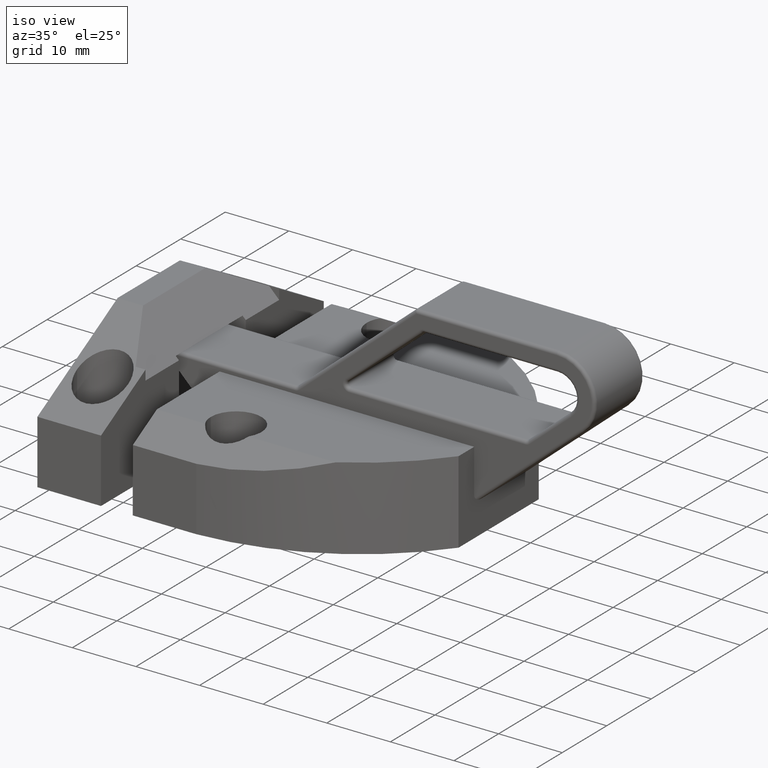
[diagram: clean part render]
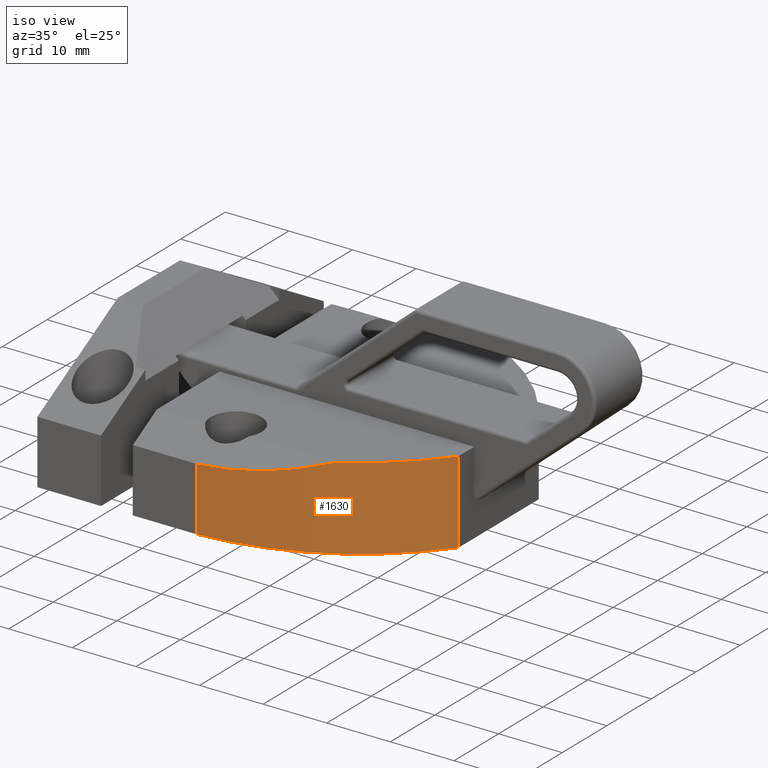
[diagram: same view with one face highlighted and labeled with its STEP entity id]
A machine part, iso view. The second image highlights one B-rep face of the part: STEP entity #1630.
In plain terms, the highlighted cylindrical surface (partial cylindrical patch) has radius 40 mm, axis along (0, 0, 1).
Its self-contained STEP definition (entity closure, byte-faithful):
#99=ELLIPSE('',#1837,45.7583561820953,39.9999999999665);
#191=FACE_OUTER_BOUND('',#295,.T.);
#295=EDGE_LOOP('',(#1499,#1500,#1501,#1502,#1503));
#417=LINE('',#2805,#551);
#420=LINE('',#2812,#554);
#551=VECTOR('',#2320,1000.);
#554=VECTOR('',#2325,1000.);
#648=CIRCLE('',#1832,40.);
#650=CIRCLE('',#1839,40.);
#792=VERTEX_POINT('',#2802);
#793=VERTEX_POINT('',#2804);
#795=VERTEX_POINT('',#2809);
#796=VERTEX_POINT('',#2811);
#801=VERTEX_POINT('',#2831);
#1017=EDGE_CURVE('',#792,#793,#417,.T.);
#1020=EDGE_CURVE('',#796,#795,#420,.T.);
#1026=EDGE_CURVE('',#796,#792,#648,.T.);
#1031=EDGE_CURVE('',#801,#793,#99,.T.);
#1034=EDGE_CURVE('',#795,#801,#650,.T.);
#1499=ORIENTED_EDGE('',*,*,#1031,.T.);
#1500=ORIENTED_EDGE('',*,*,#1017,.F.);
#1501=ORIENTED_EDGE('',*,*,#1026,.F.);
#1502=ORIENTED_EDGE('',*,*,#1020,.T.);
#1503=ORIENTED_EDGE('',*,*,#1034,.T.);
#1538=CYLINDRICAL_SURFACE('',#1844,40.);
#1630=ADVANCED_FACE('',(#191),#1538,.T.);
#1832=AXIS2_PLACEMENT_3D('',#2823,#2335,#2336);
#1837=AXIS2_PLACEMENT_3D('',#2832,#2347,#2348);
#1839=AXIS2_PLACEMENT_3D('',#2836,#2353,#2354);
#1844=AXIS2_PLACEMENT_3D('',#2841,#2363,#2364);
#2320=DIRECTION('',(0.,0.,1.));
#2325=DIRECTION('',(0.,0.,1.));
#2335=DIRECTION('center_axis',(0.,0.,-1.));
#2336=DIRECTION('ref_axis',(-1.,0.,0.));
#2347=DIRECTION('center_axis',(-5.96069529910698E-16,0.485642931178635,
-0.874157276121536));
#2348=DIRECTION('ref_axis',(1.5949163049655E-12,0.874157276121536,0.485642931178635));
#2353=DIRECTION('center_axis',(0.,0.,-1.));
#2354=DIRECTION('ref_axis',(-1.,0.,0.));
#2363=DIRECTION('center_axis',(0.,0.,1.));
#2364=DIRECTION('ref_axis',(1.,0.,0.));
#2802=CARTESIAN_POINT('',(25.,-25.,0.));
#2804=CARTESIAN_POINT('',(25.,-25.,9.99999999999999));
#2805=CARTESIAN_POINT('',(25.,-25.,0.));
#2809=CARTESIAN_POINT('',(55.,-9.,13.));
#2811=CARTESIAN_POINT('',(55.,-9.,0.));
#2812=CARTESIAN_POINT('',(55.,-9.,0.));
#2823=CARTESIAN_POINT('Origin',(22.9610663621349,14.9480005709971,0.));
#2831=CARTESIAN_POINT('',(43.1213157789052,-19.6,13.));
#2832=CARTESIAN_POINT('Origin',(22.9610663621526,14.9480005709366,32.1933336505205));
#2836=CARTESIAN_POINT('Origin',(22.9610663621349,14.9480005709971,13.));
#2841=CARTESIAN_POINT('Origin',(22.9610663621349,14.9480005709971,0.));